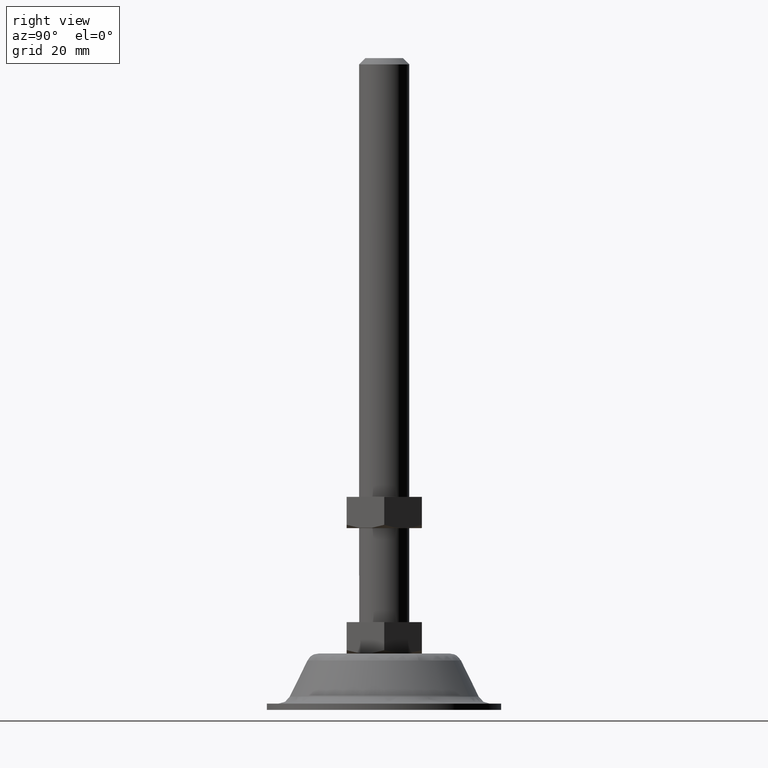
[diagram: clean part render]
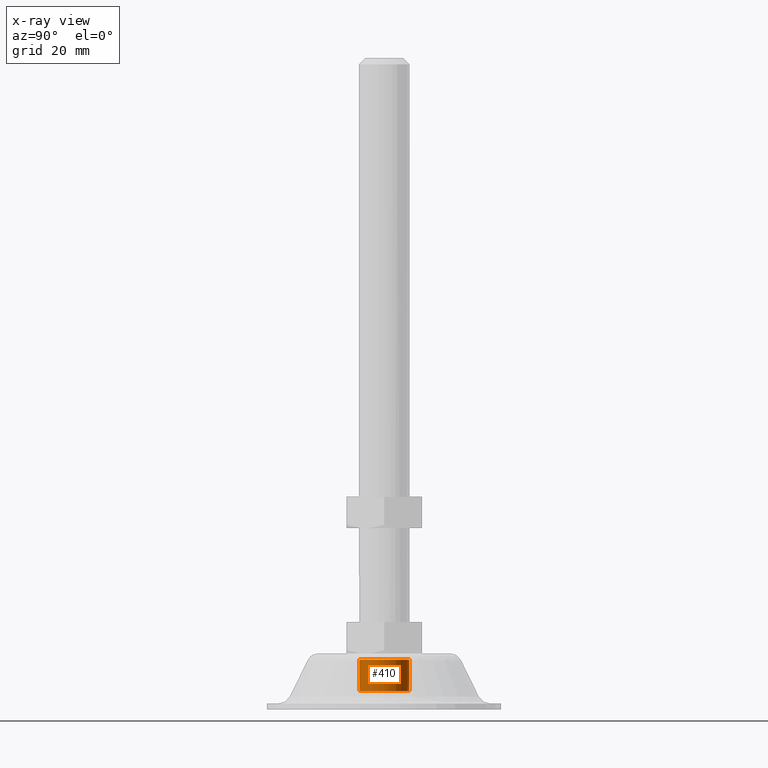
[diagram: x-ray — body ghosted, one internal face saturated and labeled with its STEP entity id]
A machine part, right view, then the same camera in x-ray: the body is ghosted and one INTERNAL B-rep face — a face not visible from any outside direction — is saturated and labeled: STEP entity #410.
In plain terms, the highlighted face is a freeform B-spline surface patch.
Its self-contained STEP definition (entity closure, byte-faithful):
#312=CARTESIAN_POINT('',(-0.627672765822764,-7.975338669865021,68.250000000000014));
#313=CARTESIAN_POINT('',(-8.603011435687785,-7.347665904042257,68.250000000000014));
#314=CARTESIAN_POINT('',(-7.975338669865021,0.627672765822764,68.250000000000014));
#315=CARTESIAN_POINT('',(-7.347665904042257,8.603011435687785,68.250000000000014));
#316=CARTESIAN_POINT('',(0.627672765822764,7.975338669865021,68.250000000000014));
#317=CARTESIAN_POINT('',(-0.627672765822764,-7.975338669865021,57.743749999999991));
#318=CARTESIAN_POINT('',(-8.603011435687785,-7.347665904042257,57.743749999999991));
#319=CARTESIAN_POINT('',(-7.975338669865021,0.627672765822764,57.743749999999991));
#320=CARTESIAN_POINT('',(-7.347665904042257,8.603011435687785,57.743749999999991));
#321=CARTESIAN_POINT('',(0.627672765822764,7.975338669865021,57.743749999999991));
#329=(BOUNDED_SURFACE()B_SPLINE_SURFACE(2,1,((#312,#317),(#313,#318),(#314,#319),(#315,#320),(#316,#321)),.UNSPECIFIED.,.F.,.F.,.U.)B_SPLINE_SURFACE_WITH_KNOTS((3,2,3),(2,2),(0.0,13.254833995939039,26.509667991878072),(0.0,10.506250000000019),.UNSPECIFIED.)GEOMETRIC_REPRESENTATION_ITEM()RATIONAL_B_SPLINE_SURFACE(((1.0,1.0),(0.707106781186548,0.707106781186548),(1.0,1.0),(0.707106781186548,0.707106781186548),(1.0,1.0)))REPRESENTATION_ITEM('')SURFACE());
#330=CARTESIAN_POINT('',(-8.0,0.0,68.0));
#331=VERTEX_POINT('',#330);
#332=CARTESIAN_POINT('',(-0.627672766268568,-7.975338669829936,68.0));
#333=VERTEX_POINT('',#332);
#334=CARTESIAN_POINT('',(-8.0,0.0,68.0));
#335=CARTESIAN_POINT('',(-8.0,-7.395123932436357,68.0));
#336=CARTESIAN_POINT('',(-0.627672766268568,-7.975338669829936,68.0));
#344=(BOUNDED_CURVE()B_SPLINE_CURVE(2,(#334,#335,#336),.UNSPECIFIED.,.F.,.U.)B_SPLINE_CURVE_WITH_KNOTS((3,3),(0.0,0.236331300613602),.UNSPECIFIED.)CURVE()GEOMETRIC_REPRESENTATION_ITEM()RATIONAL_B_SPLINE_CURVE((1.0,0.723120658627649,0.969723356131821))REPRESENTATION_ITEM(''));
#345=EDGE_CURVE('',#331,#333,#344,.T.);
#346=ORIENTED_EDGE('',*,*,#345,.T.);
#347=CARTESIAN_POINT('',(-0.627672766268568,-7.975338669829936,58.0));
#348=VERTEX_POINT('',#347);
#349=CARTESIAN_POINT('',(-0.627672766268568,-7.975338669829936,68.0));
#350=CARTESIAN_POINT('',(-0.627672766268568,-7.975338669829936,58.0));
#351=QUASI_UNIFORM_CURVE('',1,(#349,#350),.UNSPECIFIED.,.F.,.U.);
#352=EDGE_CURVE('',#333,#348,#351,.T.);
#353=ORIENTED_EDGE('',*,*,#352,.T.);
#354=CARTESIAN_POINT('',(-8.0,0.0,58.0));
#355=VERTEX_POINT('',#354);
#356=CARTESIAN_POINT('',(-8.0,0.0,58.0));
#357=CARTESIAN_POINT('',(-8.0,-7.395123932436357,57.999999999999993));
#358=CARTESIAN_POINT('',(-0.627672766268568,-7.975338669829936,58.000000000000007));
#366=(BOUNDED_CURVE()B_SPLINE_CURVE(2,(#356,#357,#358),.UNSPECIFIED.,.F.,.U.)B_SPLINE_CURVE_WITH_KNOTS((3,3),(0.0,0.236331300613602),.UNSPECIFIED.)CURVE()GEOMETRIC_REPRESENTATION_ITEM()RATIONAL_B_SPLINE_CURVE((1.0,0.723120658627649,0.969723356131821))REPRESENTATION_ITEM(''));
#367=EDGE_CURVE('',#355,#348,#366,.T.);
#368=ORIENTED_EDGE('',*,*,#367,.F.);
#369=CARTESIAN_POINT('',(0.627672766268571,7.975338669829936,58.0));
#370=VERTEX_POINT('',#369);
#371=CARTESIAN_POINT('',(0.627672766268571,7.975338669829936,58.0));
#372=CARTESIAN_POINT('',(0.314320856509235,8.0,57.999999999999993));
#373=CARTESIAN_POINT('',(0.0,8.0,58.0));
#374=CARTESIAN_POINT('',(-8.0,8.0,58.0));
#375=CARTESIAN_POINT('',(-8.0,0.0,58.0));
#383=(BOUNDED_CURVE()B_SPLINE_CURVE(2,(#371,#372,#373,#374,#375),.UNSPECIFIED.,.F.,.U.)B_SPLINE_CURVE_WITH_KNOTS((3,2,3),(0.736331300613602,0.750000000000000,1.0),.UNSPECIFIED.)CURVE()GEOMETRIC_REPRESENTATION_ITEM()RATIONAL_B_SPLINE_CURVE((0.969723356131820,0.983986122558898,1.0,0.707106781186548,1.0))REPRESENTATION_ITEM(''));
#384=EDGE_CURVE('',#370,#355,#383,.T.);
#385=ORIENTED_EDGE('',*,*,#384,.F.);
#386=CARTESIAN_POINT('',(0.627672766268566,7.975338669829937,68.0));
#387=VERTEX_POINT('',#386);
#388=CARTESIAN_POINT('',(0.627672766268566,7.975338669829937,68.0));
#389=CARTESIAN_POINT('',(0.627672766268571,7.975338669829936,58.0));
#390=QUASI_UNIFORM_CURVE('',1,(#388,#389),.UNSPECIFIED.,.F.,.U.);
#391=EDGE_CURVE('',#387,#370,#390,.T.);
#392=ORIENTED_EDGE('',*,*,#391,.F.);
#393=CARTESIAN_POINT('',(0.627672766268566,7.975338669829937,68.0));
#394=CARTESIAN_POINT('',(0.314320856509229,8.0,68.0));
#395=CARTESIAN_POINT('',(0.0,8.0,68.0));
#396=CARTESIAN_POINT('',(-8.0,8.0,68.000000000000014));
#397=CARTESIAN_POINT('',(-8.0,0.0,68.0));
#405=(BOUNDED_CURVE()B_SPLINE_CURVE(2,(#393,#394,#395,#396,#397),.UNSPECIFIED.,.F.,.U.)B_SPLINE_CURVE_WITH_KNOTS((3,2,3),(0.736331300613602,0.750000000000000,1.0),.UNSPECIFIED.)CURVE()GEOMETRIC_REPRESENTATION_ITEM()RATIONAL_B_SPLINE_CURVE((0.969723356131821,0.983986122558898,1.0,0.707106781186548,1.0))REPRESENTATION_ITEM(''));
#406=EDGE_CURVE('',#387,#331,#405,.T.);
#407=ORIENTED_EDGE('',*,*,#406,.T.);
#408=EDGE_LOOP('',(#346,#353,#368,#385,#392,#407));
#409=FACE_OUTER_BOUND('',#408,.T.);
#410=ADVANCED_FACE('',(#409),#329,.F.);